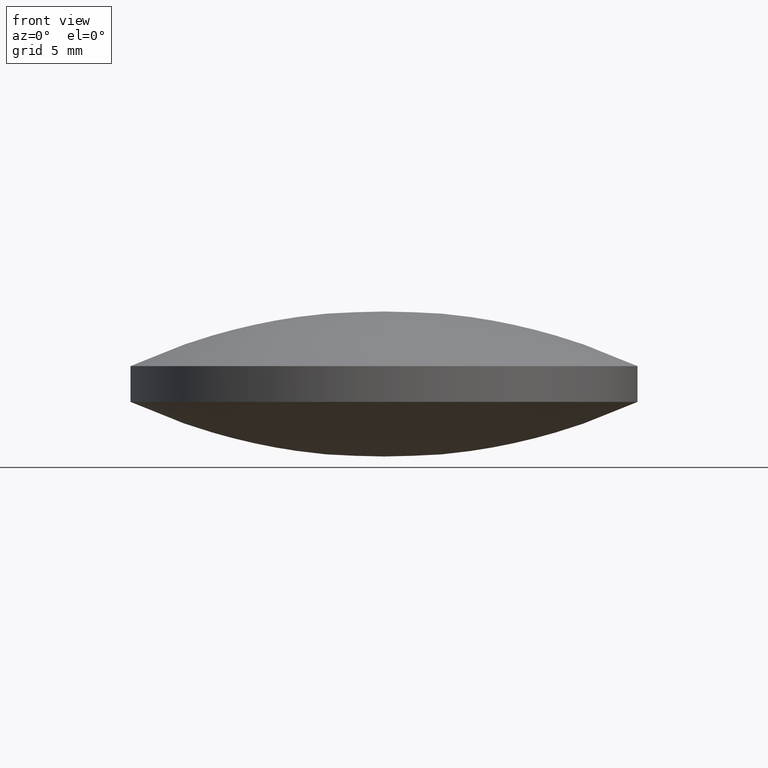
[diagram: clean part render]
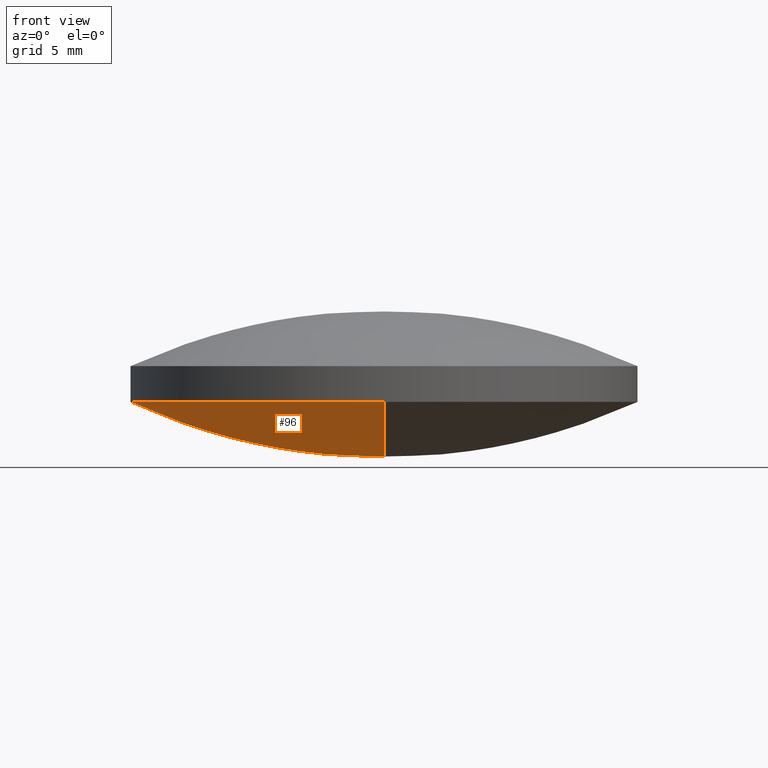
[diagram: same view with one face highlighted and labeled with its STEP entity id]
A machine part, front view. The second image highlights one B-rep face of the part: STEP entity #96.
In plain terms, the highlighted face is a freeform B-spline surface patch.
Its self-contained STEP definition (entity closure, byte-faithful):
#22 = VERTEX_POINT ( 'NONE', #145 ) ;
#26 = AXIS2_PLACEMENT_3D ( 'NONE', #146, #255, #121 ) ;
#29 = AXIS2_PLACEMENT_3D ( 'NONE', #159, #263, #39 ) ;
#34 = CARTESIAN_POINT ( 'NONE',  ( -6.859724987162827000, -6.845478120576445700, -1.511125564110184200 ) ) ;
#39 = DIRECTION ( 'NONE',  ( 1.000000000000000000, 8.881784197001252300E-016, 0.0000000000000000000 ) ) ;
#54 = CARTESIAN_POINT ( 'NONE',  ( -17.37683644862781000, 19.26412198409373700, 8.064950468004463200 ) ) ;
#60 = ORIENTED_EDGE ( 'NONE', *, *, #147, .T. ) ;
#64 = EDGE_CURVE ( 'NONE', #88, #276, #281, .T. ) ;
#74 = CARTESIAN_POINT ( 'NONE',  ( -6.859724987162828700, 6.845478120576419900, -1.511125564110194600 ) ) ;
#79 = CARTESIAN_POINT ( 'NONE',  ( -19.05000000000000400, 1.444773732675583000E-015, 4.153809354856820200 ) ) ;
#88 = VERTEX_POINT ( 'NONE', #253 ) ;
#89 = CARTESIAN_POINT ( 'NONE',  ( -17.37683644862781000, -19.26412198409375900, 8.064950468004477500 ) ) ;
#90 = CARTESIAN_POINT ( 'NONE',  ( -11.90673879215715300, -19.26412198409375900, 5.543319815845978700 ) ) ;
#91 = CARTESIAN_POINT ( 'NONE',  ( -6.023337074847408000, 19.26412198409373400, 4.252516287036182300 ) ) ;
#96 = ADVANCED_FACE ( 'NONE', ( #242 ), #190, .T. ) ;
#98 = CARTESIAN_POINT ( 'NONE',  ( -2.428612866367529900E-014, -19.26412198409376200, 4.252516287036193900 ) ) ;
#99 = CARTESIAN_POINT ( 'NONE',  ( -2.775557561562891400E-014, 6.845478120576420800, -1.511125564110197900 ) ) ;
#107 = ORIENTED_EDGE ( 'NONE', *, *, #244, .F. ) ;
#121 = DIRECTION ( 'NONE',  ( 1.000000000000000000, 0.0000000000000000000, 0.0000000000000000000 ) ) ;
#125 = CARTESIAN_POINT ( 'NONE',  ( -13.56008348748281600, -6.845478120576445700, -0.04108377331123050400 ) ) ;
#126 = CARTESIAN_POINT ( 'NONE',  ( -6.023337074847408000, -19.26412198409376200, 4.252516287036197400 ) ) ;
#145 = CARTESIAN_POINT ( 'NONE',  ( -1.690406712932035900E-014, 19.04999999999999400, 4.153809354856816700 ) ) ;
#146 = CARTESIAN_POINT ( 'NONE',  ( -4.662936703425659800E-015, -8.881784197001250400E-016, 4.153809354856820200 ) ) ;
#147 = EDGE_CURVE ( 'NONE', #276, #22, #254, .T. ) ;
#159 = CARTESIAN_POINT ( 'NONE',  ( -4.662936703425659800E-015, -8.881784197001250400E-016, 4.153809354856820200 ) ) ;
#160 = CARTESIAN_POINT ( 'NONE',  ( -3.552713678800500100E-015, -7.105427357601000300E-015, 45.76000000000000500 ) ) ;
#161 = AXIS2_PLACEMENT_3D ( 'NONE', #160, #210, #208 ) ;
#178 = CARTESIAN_POINT ( 'NONE',  ( -19.78974739472200300, -6.845478120576444800, 2.830695205361577900 ) ) ;
#190 =( BOUNDED_SURFACE ( )  B_SPLINE_SURFACE ( 3, 3, ( 
 ( #89, #90, #126, #98 ),
 ( #178, #125, #34, #257 ),
 ( #279, #261, #74, #99 ),
 ( #54, #237, #91, #238 ) ),
 .UNSPECIFIED., .F., .F., .F. ) 
 B_SPLINE_SURFACE_WITH_KNOTS ( ( 4, 4 ),
 ( 4, 4 ),
 ( 0.0000000000000000000, 1.000000000000000000 ),
 ( 0.0000000000000000000, 1.000000000000000000 ),
 .UNSPECIFIED. ) 
 GEOMETRIC_REPRESENTATION_ITEM ( )  RATIONAL_B_SPLINE_SURFACE ( (
 ( 1.000000000000000000, 0.9845118682220205300, 0.9845118682220205300, 1.000000000000000000),
 ( 0.9380460913893329300, 0.9235175099120763700, 0.9235175099120763700, 0.9380460913893329300),
 ( 0.9380460913893329300, 0.9235175099120763700, 0.9235175099120763700, 0.9380460913893329300),
 ( 1.000000000000000000, 0.9845118682220205300, 0.9845118682220205300, 1.000000000000000000) ) ) 
 REPRESENTATION_ITEM ( '' )  SURFACE ( )  );
#208 = DIRECTION ( 'NONE',  ( 0.0000000000000000000, -1.000000000000000000, 3.032733349609802100E-016 ) ) ;
#210 = DIRECTION ( 'NONE',  ( 1.000000000000000000, -1.018886140823510000E-031, -3.208982423888019900E-016 ) ) ;
#223 = CIRCLE ( 'NONE', #161, 45.76000000000000500 ) ;
#237 = CARTESIAN_POINT ( 'NONE',  ( -11.90673879215715300, 19.26412198409373700, 5.543319815845964400 ) ) ;
#238 = CARTESIAN_POINT ( 'NONE',  ( -2.428612866367529900E-014, 19.26412198409373700, 4.252516287036178800 ) ) ;
#242 = FACE_OUTER_BOUND ( 'NONE', #246, .T. ) ;
#244 = EDGE_CURVE ( 'NONE', #88, #22, #223, .T. ) ;
#246 = EDGE_LOOP ( 'NONE', ( #107, #260, #60 ) ) ;
#253 = CARTESIAN_POINT ( 'NONE',  ( -1.690406712932036500E-014, -19.05000000000000400, 4.153809354856819300 ) ) ;
#254 = CIRCLE ( 'NONE', #29, 19.05000000000000100 ) ;
#255 = DIRECTION ( 'NONE',  ( -0.0000000000000000000, -0.0000000000000000000, -1.000000000000000000 ) ) ;
#257 = CARTESIAN_POINT ( 'NONE',  ( -2.775557561562891400E-014, -6.845478120576446600, -1.511125564110187700 ) ) ;
#260 = ORIENTED_EDGE ( 'NONE', *, *, #64, .T. ) ;
#261 = CARTESIAN_POINT ( 'NONE',  ( -13.56008348748281900, 6.845478120576419900, -0.04108377331124048200 ) ) ;
#263 = DIRECTION ( 'NONE',  ( -0.0000000000000000000, -0.0000000000000000000, -1.000000000000000000 ) ) ;
#276 = VERTEX_POINT ( 'NONE', #79 ) ;
#279 = CARTESIAN_POINT ( 'NONE',  ( -19.78974739472200600, 6.845478120576421700, 2.830695205361568200 ) ) ;
#281 = CIRCLE ( 'NONE', #26, 19.05000000000000100 ) ;